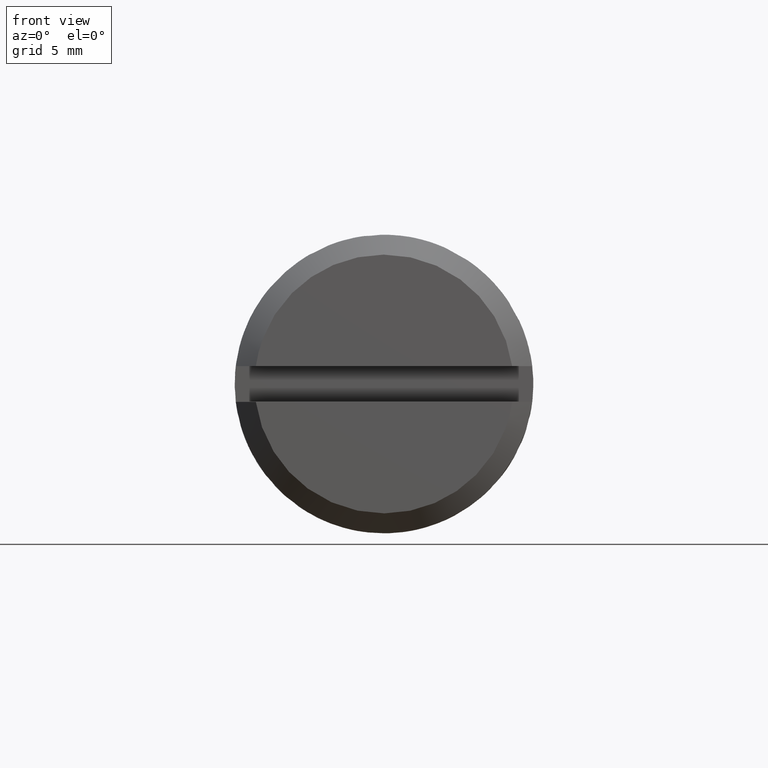
[diagram: clean part render]
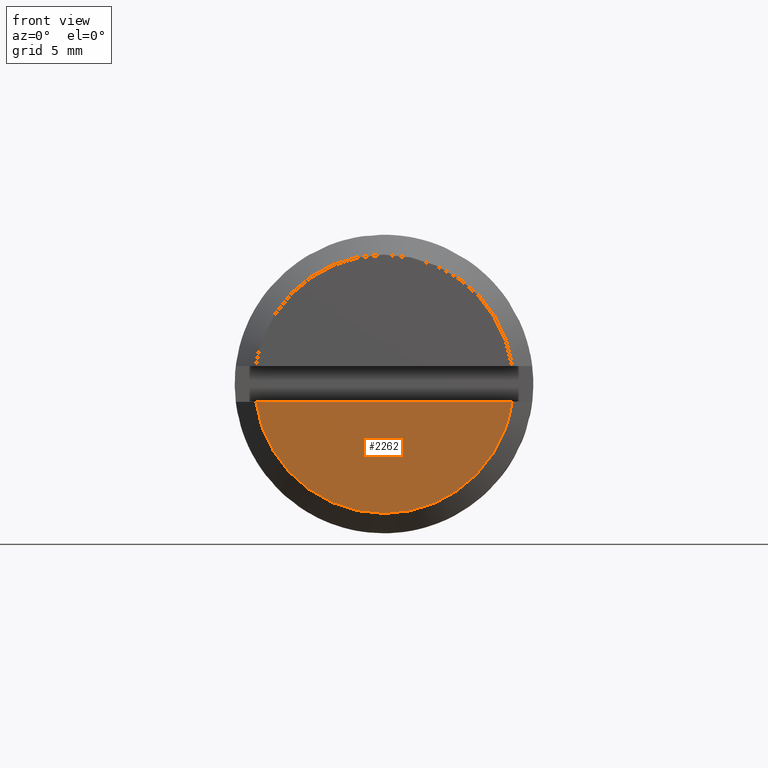
[diagram: same view with one face highlighted and labeled with its STEP entity id]
A machine part, front view. The second image highlights one B-rep face of the part: STEP entity #2262.
In plain terms, the highlighted face is a freeform B-spline surface patch.
Its self-contained STEP definition (entity closure, byte-faithful):
#2017=CARTESIAN_POINT('',(-9.999900000000000,6.437390775772390,-0.900000000000000));
#2018=VERTEX_POINT('',#2017);
#2026=CARTESIAN_POINT('',(-9.999900000000000,-6.437390775772390,-0.900000000000000));
#2027=VERTEX_POINT('',#2026);
#2028=CARTESIAN_POINT('',(-9.999900000000000,6.437390775772390,-0.900000000000000));
#2029=CARTESIAN_POINT('',(-9.999900000000000,-6.437390775772390,-0.900000000000000));
#2030=QUASI_UNIFORM_CURVE('',1,(#2028,#2029),.UNSPECIFIED.,.F.,.U.);
#2031=EDGE_CURVE('',#2018,#2027,#2030,.T.);
#2194=CARTESIAN_POINT('',(-9.999900000000000,6.437390775772390,-0.900000000000000));
#2195=CARTESIAN_POINT('',(-9.999900000000000,5.654464870610918,-6.500000000000001));
#2196=CARTESIAN_POINT('',(-9.999900000000000,0.0,-6.500000000000000));
#2197=CARTESIAN_POINT('',(-9.999900000000000,-5.654464870610914,-6.500000000000001));
#2198=CARTESIAN_POINT('',(-9.999900000000000,-6.437390775772390,-0.900000000000000));
#2206=(BOUNDED_CURVE()B_SPLINE_CURVE(2,(#2194,#2195,#2196,#2197,#2198),.UNSPECIFIED.,.F.,.U.)B_SPLINE_CURVE_WITH_KNOTS((3,2,3),(0.0,0.500000000000000,1.0),.UNSPECIFIED.)CURVE()GEOMETRIC_REPRESENTATION_ITEM()RATIONAL_B_SPLINE_CURVE((1.0,0.754473836014722,1.0,0.754473836014722,1.0))REPRESENTATION_ITEM(''));
#2207=EDGE_CURVE('',#2018,#2027,#2206,.T.);
#2253=CARTESIAN_POINT('',(-9.999900000000000,-7.080486210177464,-6.779719989146099));
#2254=CARTESIAN_POINT('',(-9.999900000000000,7.080486440396500,-6.779719989146099));
#2255=CARTESIAN_POINT('',(-9.999900000000000,-7.080486210177464,-0.620279860650183));
#2256=CARTESIAN_POINT('',(-9.999900000000000,7.080486440396500,-0.620279860650183));
#2257=B_SPLINE_SURFACE_WITH_KNOTS('',1,1,((#2253,#2255),(#2254,#2256)),.UNSPECIFIED.,.F.,.F.,.U.,(2,2),(2,2),(0.0,14.160972650573960),(0.0,6.159440128495916),.UNSPECIFIED.);
#2258=ORIENTED_EDGE('',*,*,#2031,.F.);
#2259=ORIENTED_EDGE('',*,*,#2207,.T.);
#2260=EDGE_LOOP('',(#2258,#2259));
#2261=FACE_OUTER_BOUND('',#2260,.T.);
#2262=ADVANCED_FACE('',(#2261),#2257,.F.);